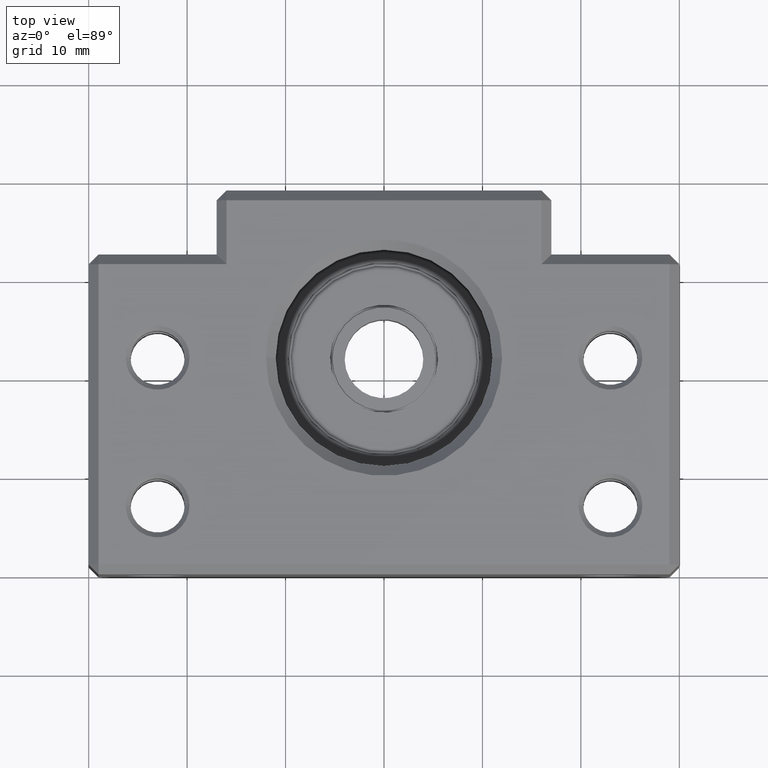
[diagram: clean part render]
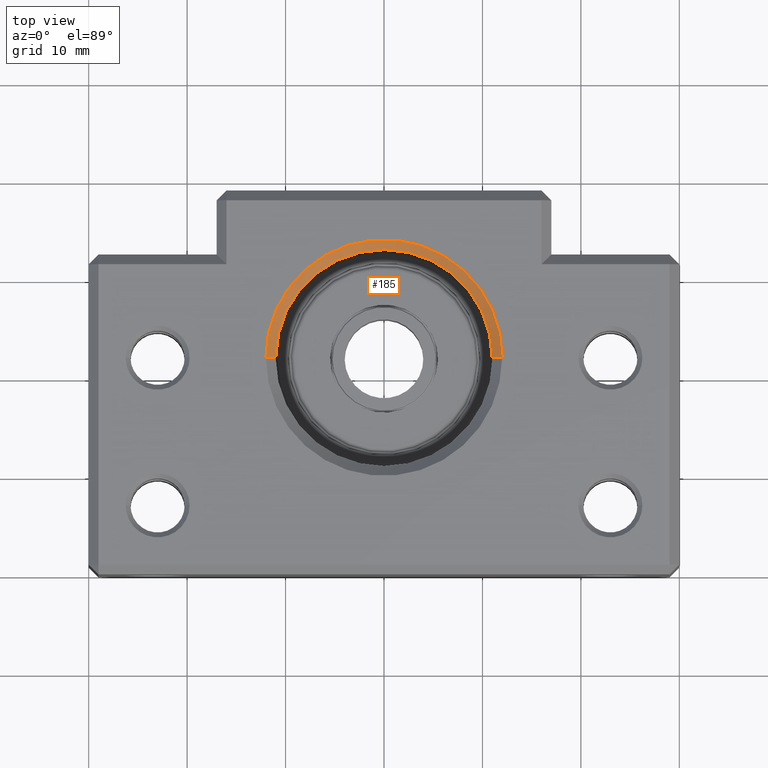
[diagram: same view with one face highlighted and labeled with its STEP entity id]
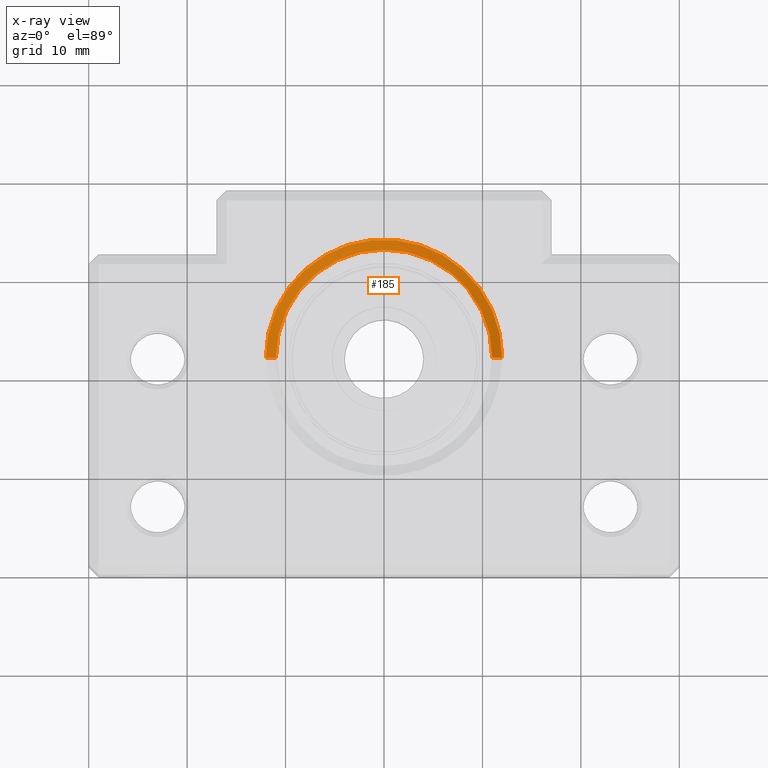
[diagram: x-ray of the same camera — body ghosted, the highlighted face saturated]
A machine part, top view. The second image highlights one B-rep face of the part: STEP entity #185.
The next image is the same camera in x-ray: the body ghosted, the highlighted face saturated — about 0% of this face is hidden behind the body in this view.
In plain terms, the highlighted conical surface has half-angle 45 deg.
Its self-contained STEP definition (entity closure, byte-faithful):
#168 = ORIENTED_EDGE ( 'NONE', *, *, #6321, .F. ) ;
#170 = ORIENTED_EDGE ( 'NONE', *, *, #1655, .F. ) ;
#177 = ORIENTED_EDGE ( 'NONE', *, *, #596, .T. ) ;
#182 = ORIENTED_EDGE ( 'NONE', *, *, #590, .F. ) ;
#185 = ADVANCED_FACE ( 'NONE', ( #1091 ), #1089, .F. ) ;
#194 = EDGE_LOOP ( 'NONE', ( #182, #170, #177, #168 ) ) ;
#581 = VERTEX_POINT ( 'NONE', #1897 ) ;
#582 = VERTEX_POINT ( 'NONE', #1896 ) ;
#590 = EDGE_CURVE ( 'NONE', #581, #591, #1877, .T. ) ;
#591 = VERTEX_POINT ( 'NONE', #1937 ) ;
#594 = VERTEX_POINT ( 'NONE', #1931 ) ;
#596 = EDGE_CURVE ( 'NONE', #582, #594, #1930, .T. ) ;
#1085 = DIRECTION ( 'NONE',  ( 1.000000000000000000, 0.0000000000000000000, 0.0000000000000000000 ) ) ;
#1086 = DIRECTION ( 'NONE',  ( 0.0000000000000000000, 0.0000000000000000000, 1.000000000000000000 ) ) ;
#1087 = CARTESIAN_POINT ( 'NONE',  ( 1.442981060739971800E-014, 21.99999999999999300, 8.999999999999987600 ) ) ;
#1088 = AXIS2_PLACEMENT_3D ( 'NONE', #1087, #1086, #1085 ) ;
#1089 = CONICAL_SURFACE ( 'NONE', #1088, 11.00000000000000000, 0.7853981633974473900 ) ;
#1091 = FACE_OUTER_BOUND ( 'NONE', #194, .T. ) ;
#1655 = EDGE_CURVE ( 'NONE', #582, #581, #2456, .T. ) ;
#1874 = DIRECTION ( 'NONE',  ( -0.7071067811865469100, 8.659274570719349300E-017, 0.7071067811865481300 ) ) ;
#1875 = VECTOR ( 'NONE', #1874, 1000.000000000000100 ) ;
#1876 = CARTESIAN_POINT ( 'NONE',  ( -10.99999999999998600, 21.99999999999999300, 8.999999999999987600 ) ) ;
#1877 = LINE ( 'NONE', #1876, #1875 ) ;
#1896 = CARTESIAN_POINT ( 'NONE',  ( 11.00000000000001200, 21.99999999999999300, 8.999999999999987600 ) ) ;
#1897 = CARTESIAN_POINT ( 'NONE',  ( -10.99999999999998600, 21.99999999999999300, 8.999999999999987600 ) ) ;
#1927 = DIRECTION ( 'NONE',  ( 0.7071067811865469100, 0.0000000000000000000, 0.7071067811865481300 ) ) ;
#1928 = VECTOR ( 'NONE', #1927, 1000.000000000000100 ) ;
#1929 = CARTESIAN_POINT ( 'NONE',  ( 11.00000000000001200, 21.99999999999999300, 8.999999999999987600 ) ) ;
#1930 = LINE ( 'NONE', #1929, #1928 ) ;
#1931 = CARTESIAN_POINT ( 'NONE',  ( 12.00000000000002500, 21.99999999999999300, 10.00000000000000000 ) ) ;
#1937 = CARTESIAN_POINT ( 'NONE',  ( -11.99999999999999600, 21.99999999999999300, 10.00000000000000000 ) ) ;
#2449 = CARTESIAN_POINT ( 'NONE',  ( 1.442981060739971800E-014, 21.99999999999999300, 8.999999999999987600 ) ) ;
#2450 = AXIS2_PLACEMENT_3D ( 'NONE', #2449, #2517, #2516 ) ;
#2456 = CIRCLE ( 'NONE', #2450, 11.00000000000000000 ) ;
#2516 = DIRECTION ( 'NONE',  ( 1.000000000000000000, 0.0000000000000000000, 0.0000000000000000000 ) ) ;
#2517 = DIRECTION ( 'NONE',  ( 0.0000000000000000000, 0.0000000000000000000, 1.000000000000000000 ) ) ;
#4857 = DIRECTION ( 'NONE',  ( 1.000000000000000000, 0.0000000000000000000, 0.0000000000000000000 ) ) ;
#4858 = DIRECTION ( 'NONE',  ( 0.0000000000000000000, -0.0000000000000000000, -1.000000000000000000 ) ) ;
#4859 = CARTESIAN_POINT ( 'NONE',  ( 1.442981060739971800E-014, 21.99999999999999300, 10.00000000000000000 ) ) ;
#4860 = AXIS2_PLACEMENT_3D ( 'NONE', #4859, #4858, #4857 ) ;
#4861 = CIRCLE ( 'NONE', #4860, 12.00000000000001100 ) ;
#6321 = EDGE_CURVE ( 'NONE', #591, #594, #4861, .T. ) ;